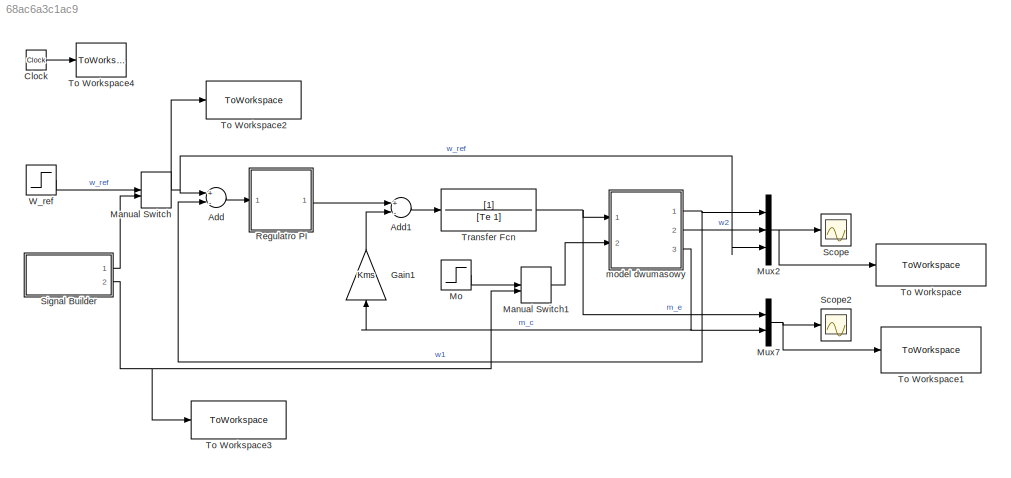
MODEL slx_68ac6a3c1ac9
KIND model
CONFIG AbsTol = auto
CONFIG EnableMultiTasking = off
CONFIG FixedStep = 0.0001
CONFIG MaxStep = auto
CONFIG MinStep = auto
CONFIG RelTol = 1e-3
CONFIG SampleTimeConstraint = Unconstrained
CONFIG Solver = ode1
CONFIG SolverName = ode1
CONFIG StartTime = 0.0
CONFIG StopTime = 9
BLOCK [Sum] Add
  InputSameDT = off
  Inputs = +-
  OutDataTypeStr = Inherit: Inherit via internal rule
  Ports = [2, 1]
  SaturateOnIntegerOverflow = off
BLOCK [Sum] Add1
  InputSameDT = off
  Inputs = +-
  OutDataTypeStr = Inherit: Inherit via internal rule
  Ports = [2, 1]
  SaturateOnIntegerOverflow = off
BLOCK [Clock] Clock
BLOCK [Gain] Gain1
  Gain = Kms
  OutDataTypeStr = Inherit: Inherit via internal rule
  ParamDataTypeStr = Inherit: Inherit via internal rule
  SaturateOnIntegerOverflow = off
BLOCK [ManualSwitch] Manual Switch
  CurrentSetting = 0
BLOCK [ManualSwitch] Manual Switch1
  CurrentSetting = 0
BLOCK [Step] Mo
  After = 0.25
  SampleTime = 0
  Time = 2
BLOCK [Mux] Mux2
  DisplayOption = bar
  Inputs = 3
  Ports = [3, 1]
BLOCK [Mux] Mux7
  DisplayOption = bar
  Inputs = 2
  Ports = [2, 1]
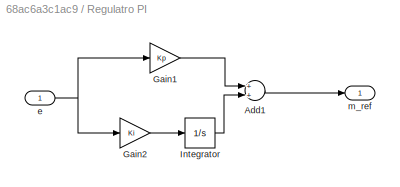
BLOCK [SubSystem] Regulatro PI
  Ports = [1, 1]
  RequestExecContextInheritance = off
  Variant = off
BLOCK [Sum] Regulatro PI/Add1
  InputSameDT = off
  OutDataTypeStr = Inherit: Inherit via internal rule
  Ports = [2, 1]
  SaturateOnIntegerOverflow = off
BLOCK [Gain] Regulatro PI/Gain1
  Gain = Kp
  OutDataTypeStr = Inherit: Inherit via internal rule
  ParamDataTypeStr = Inherit: Inherit via internal rule
  SaturateOnIntegerOverflow = off
BLOCK [Gain] Regulatro PI/Gain2
  Gain = Ki
  OutDataTypeStr = Inherit: Inherit via internal rule
  ParamDataTypeStr = Inherit: Inherit via internal rule
  SaturateOnIntegerOverflow = off
BLOCK [Integrator] Regulatro PI/Integrator
  Ports = [1, 1]
BLOCK [Inport] Regulatro PI/e
  IconDisplay = Port number
BLOCK [Outport] Regulatro PI/m_ref
  IconDisplay = Port number
BLOCK [Scope] Scope
  NumInputPorts = 1
  Ports = [1]
  ScopeSpecificationString = Simulink.scopes.TimeScopeBlockCfg('CurrentConfiguration', extmgr.ConfigurationSet(extmgr.Configuration('Core','General UI',true),extmgr.Configuration('Core','Source UI',true),extmgr.Configuration('Sources','WiredSimulink',true,'DataLoggingVariableName','ScopeData1'),extmgr.Configuration('Visuals','Time Domain',true,'SerializedDisplays',{struct('MinYLimReal','-0.80365','MaxYLimReal','1.41294','YLab...<+1471ch>
BLOCK [Scope] Scope2
  NumInputPorts = 1
  Ports = [1]
  ScopeSpecificationString = Simulink.scopes.TimeScopeBlockCfg('CurrentConfiguration', extmgr.ConfigurationSet(extmgr.Configuration('Core','General UI',true),extmgr.Configuration('Core','Source UI',true),extmgr.Configuration('Sources','WiredSimulink',true),extmgr.Configuration('Visuals','Time Domain',true,'SerializedDisplays',{struct('MinYLimReal','-8.04541','MaxYLimReal','10.53224','YLabelReal','','MinYLimMag','0.00000','Max...<+1366ch>
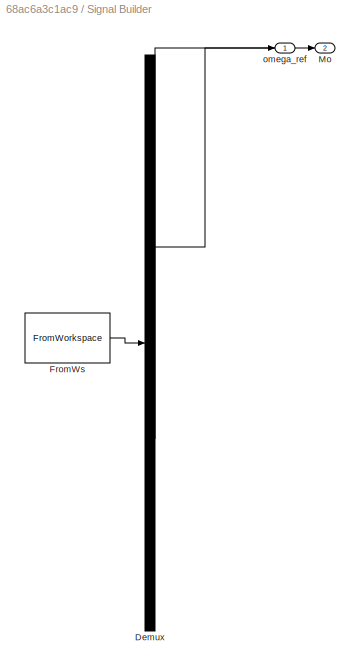
BLOCK [SubSystem] Signal Builder
  ClipboardFcn = sigbuilder_block('clipboard');
  CloseFcn = sigbuilder_block('close');
  ContinueFcn = sigbuilder_block('continue');
  CopyFcn = sigbuilder_block('copy');
  DeleteFcn = sigbuilder_block('delete');
  LoadFcn = sigbuilder_block('load');
  MaskHideContents = on
  ModelCloseFcn = sigbuilder_block('modelClose');
  NameChangeFcn = sigbuilder_block('namechange');
  OpenFcn = sigbuilder_block('open',[217.2 110.4 550.8 400.2 ]);
  PauseFcn = sigbuilder_block('pause');
  Ports = [0, 2]
  PreSaveFcn = sigbuilder_block('preSave');
  RequestExecContextInheritance = off
  StartFcn = sigbuilder_block('start');
  StopFcn = sigbuilder_block('stop');
  Tag = STV Subsys
  Variant = off
BLOCK [Demux] Signal Builder/Demux
  Outputs = 2
  Ports = [1, 2]
  Tag = STV Demux
BLOCK [FromWorkspace] Signal Builder/FromWs
  SampleTime = 0
  Tag = STV FromWs
  VariableName = tuvar
  ZeroCross = on
BLOCK [Outport] Signal Builder/Mo
  IconDisplay = Port number
  Port = 2
  Tag = STV Outport
BLOCK [Outport] Signal Builder/omega_ref
  IconDisplay = Port number
  Tag = STV Outport
BLOCK [ToWorkspace] To Workspace
  FixptAsFi = on
  MaxDataPoints = inf
  Ports = [1]
  SampleTime = -1
  Save2DSignal = 3-D array (concatenate along third dimension)
  VariableName = predkosci_napedu
BLOCK [ToWorkspace] To Workspace1
  FixptAsFi = on
  MaxDataPoints = inf
  Ports = [1]
  SampleTime = -1
  Save2DSignal = 3-D array (concatenate along third dimension)
  VariableName = momenty_porow
BLOCK [ToWorkspace] To Workspace2
  FixptAsFi = on
  MaxDataPoints = inf
  Ports = [1]
  SampleTime = -1
  Save2DSignal = 3-D array (concatenate along third dimension)
  VariableName = omega_ref
BLOCK [ToWorkspace] To Workspace3
  FixptAsFi = on
  MaxDataPoints = inf
  Ports = [1]
  SampleTime = -1
  Save2DSignal = 3-D array (concatenate along third dimension)
  VariableName = m_obc
BLOCK [ToWorkspace] To Workspace4
  FixptAsFi = on
  MaxDataPoints = inf
  Ports = [1]
  SampleTime = -1
  Save2DSignal = 3-D array (concatenate along third dimension)
  VariableName = Czas
BLOCK [TransferFcn] Transfer Fcn
  Denominator = [Te 1]
BLOCK [Step] W_ref
  After = 0.25
  SampleTime = 0
  Time = 0.5
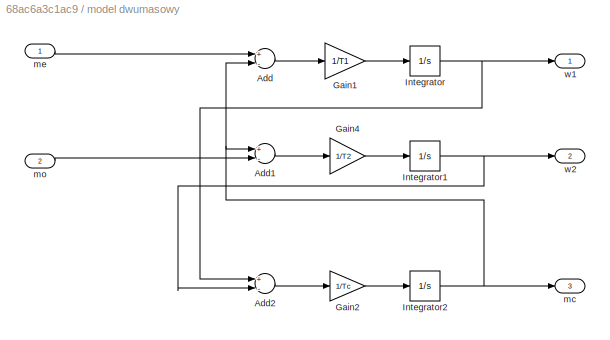
BLOCK [SubSystem] model dwumasowy 
  Ports = [2, 3]
  RequestExecContextInheritance = off
  Variant = off
BLOCK [Sum] model dwumasowy /Add
  InputSameDT = off
  Inputs = +-
  OutDataTypeStr = Inherit: Inherit via internal rule
  Ports = [2, 1]
  SaturateOnIntegerOverflow = off
BLOCK [Sum] model dwumasowy /Add1
  InputSameDT = off
  Inputs = +-
  OutDataTypeStr = Inherit: Inherit via internal rule
  Ports = [2, 1]
  SaturateOnIntegerOverflow = off
BLOCK [Sum] model dwumasowy /Add2
  InputSameDT = off
  Inputs = +-
  OutDataTypeStr = Inherit: Inherit via internal rule
  Ports = [2, 1]
  SaturateOnIntegerOverflow = off
BLOCK [Gain] model dwumasowy /Gain1
  Gain = 1/T1
  OutDataTypeStr = Inherit: Inherit via internal rule
  ParamDataTypeStr = Inherit: Inherit via internal rule
  SaturateOnIntegerOverflow = off
BLOCK [Gain] model dwumasowy /Gain2
  Gain = 1/Tc
  OutDataTypeStr = Inherit: Inherit via internal rule
  ParamDataTypeStr = Inherit: Inherit via internal rule
  SaturateOnIntegerOverflow = off
BLOCK [Gain] model dwumasowy /Gain4
  Gain = 1/T2
  OutDataTypeStr = Inherit: Inherit via internal rule
  ParamDataTypeStr = Inherit: Inherit via internal rule
  SaturateOnIntegerOverflow = off
BLOCK [Integrator] model dwumasowy /Integrator
  Ports = [1, 1]
BLOCK [Integrator] model dwumasowy /Integrator1
  Ports = [1, 1]
BLOCK [Integrator] model dwumasowy /Integrator2
  Ports = [1, 1]
BLOCK [Outport] model dwumasowy /mc
  IconDisplay = Port number
  Port = 3
BLOCK [Inport] model dwumasowy /me
  IconDisplay = Port number
BLOCK [Inport] model dwumasowy /mo
  IconDisplay = Port number
  Port = 2
BLOCK [Outport] model dwumasowy /w1
  IconDisplay = Port number
BLOCK [Outport] model dwumasowy /w2
  IconDisplay = Port number
  Port = 2
LINE Add1:1 -> Transfer Fcn:1
LINE Add:1 -> Regulatro PI:1
LINE Clock:1 -> To Workspace4:1
LINE Gain1:1 -> Add1:2
LINE Manual Switch1:1 -> model dwumasowy :2
NET Manual Switch:1 -> Add:1, Mux2:3, To Workspace2:1
LINE Mo:1 -> Manual Switch1:1
NET Mux2:1 -> Scope:1, To Workspace:1
NET Mux7:1 -> Scope2:1, To Workspace1:1
LINE Regulatro PI/Add1:1 -> Regulatro PI/m_ref:1
LINE Regulatro PI/Gain1:1 -> Regulatro PI/Add1:1
LINE Regulatro PI/Gain2:1 -> Regulatro PI/Integrator:1
LINE Regulatro PI/Integrator:1 -> Regulatro PI/Add1:2
NET Regulatro PI/e:1 -> Regulatro PI/Gain1:1, Regulatro PI/Gain2:1
LINE Regulatro PI:1 -> Add1:1
LINE Signal Builder:1 -> Manual Switch:2
NET Signal Builder:2 -> Manual Switch1:2, To Workspace3:1
NET Transfer Fcn:1 -> Mux7:1, model dwumasowy :1
LINE W_ref:1 -> Manual Switch:1
LINE model dwumasowy /Add1:1 -> model dwumasowy /Gain4:1
LINE model dwumasowy /Add2:1 -> model dwumasowy /Gain2:1
LINE model dwumasowy /Add:1 -> model dwumasowy /Gain1:1
LINE model dwumasowy /Gain1:1 -> model dwumasowy /Integrator:1
LINE model dwumasowy /Gain2:1 -> model dwumasowy /Integrator2:1
LINE model dwumasowy /Gain4:1 -> model dwumasowy /Integrator1:1
NET model dwumasowy /Integrator1:1 -> model dwumasowy /Add2:2, model dwumasowy /w2:1
NET model dwumasowy /Integrator2:1 -> model dwumasowy /Add1:1, model dwumasowy /Add:2, model dwumasowy /mc:1
NET model dwumasowy /Integrator:1 -> model dwumasowy /Add2:1, model dwumasowy /w1:1
LINE model dwumasowy /me:1 -> model dwumasowy /Add:1
LINE model dwumasowy /mo:1 -> model dwumasowy /Add1:2
NET model dwumasowy :1 -> Add:2, Mux2:1
LINE model dwumasowy :2 -> Mux2:2
NET model dwumasowy :3 -> Gain1:1, Mux7:2
note: NET lines group one-source signal fan-out (src -> all destinations, sorted); 1:1 wires keep LINE
